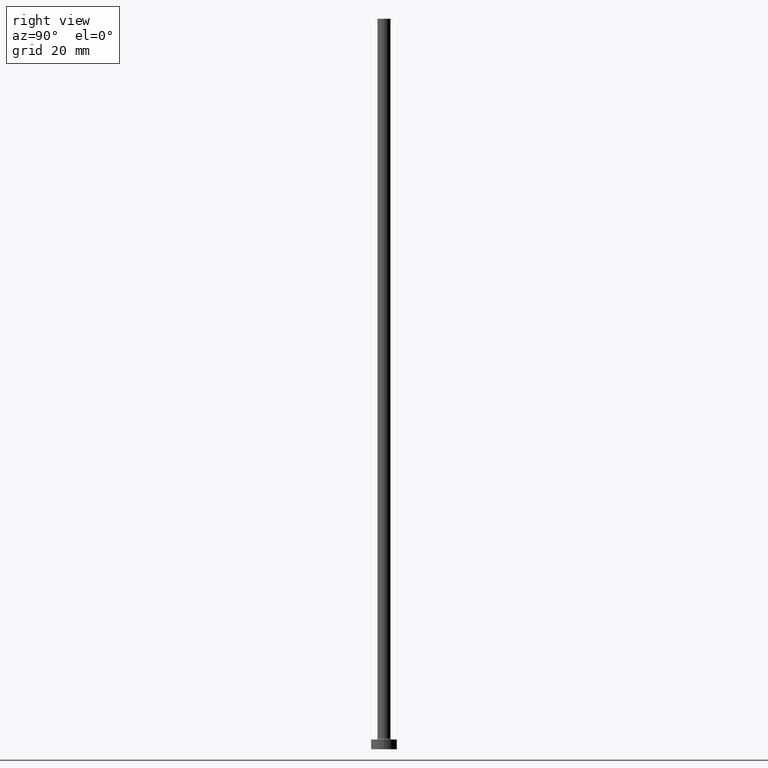
[diagram: clean part render]
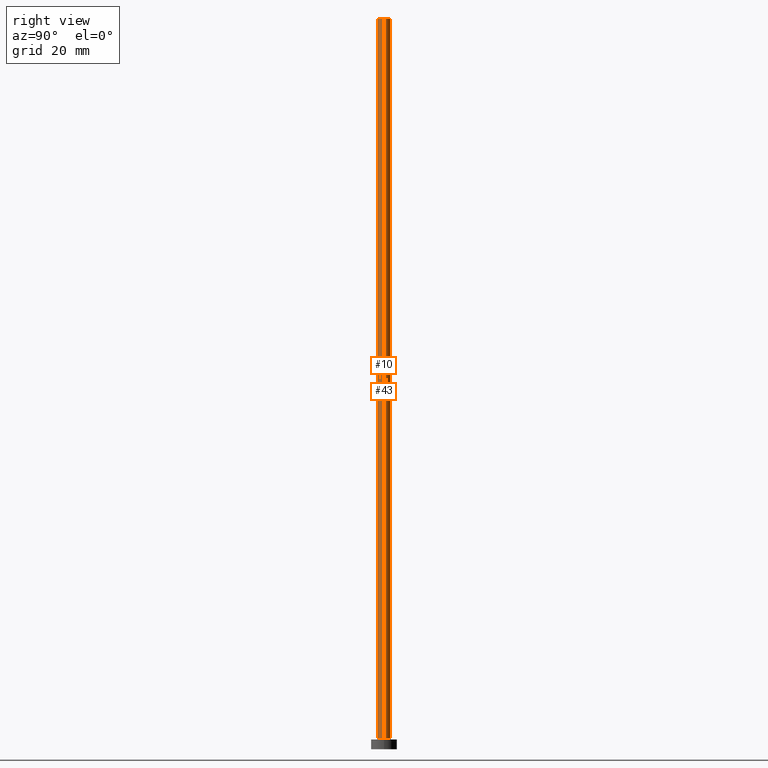
[diagram: same view with one multi-face feature highlighted, each face labeled with its STEP entity id]
A machine part, right view. The highlighted faces form ONE feature: a constant-radius fillet chain: 2 tangent blend faces with common blend radius 2 mm. The faces share edges in the B-rep.
Their STEP definitions:
[1] entity #43 (Cylinder):
#2 = VECTOR ( 'NONE', #95, 1000.000000000000000 ) ;
#19 = FACE_OUTER_BOUND ( 'NONE', #185, .T. ) ;
#29 = ORIENTED_EDGE ( 'NONE', *, *, #354, .F. ) ;
#30 = DIRECTION ( 'NONE',  ( -0.000000000000000000, -0.000000000000000000, -1.000000000000000000 ) ) ;
#34 = LINE ( 'NONE', #276, #434 ) ;
#36 = DIRECTION ( 'NONE',  ( -0.000000000000000000, -0.000000000000000000, -1.000000000000000000 ) ) ;
#43 = ADVANCED_FACE ( 'NONE', ( #19 ), #350, .T. ) ;
#47 = AXIS2_PLACEMENT_3D ( 'NONE', #301, #30, #96 ) ;
#51 = ORIENTED_EDGE ( 'NONE', *, *, #142, .T. ) ;
#59 = CARTESIAN_POINT ( 'NONE',  ( 2.000000000000000000, 2.449293598294706414E-16, 225.0000000000000000 ) ) ;
#73 = CARTESIAN_POINT ( 'NONE',  ( -2.000000000000000000, 0.000000000000000000, 3.299999999999997158 ) ) ;
#74 = DIRECTION ( 'NONE',  ( 1.000000000000000000, 0.000000000000000000, 0.000000000000000000 ) ) ;
#75 = EDGE_CURVE ( 'NONE', #331, #311, #85, .T. ) ;
#77 = DIRECTION ( 'NONE',  ( 1.000000000000000000, 0.000000000000000000, 0.000000000000000000 ) ) ;
#85 = CIRCLE ( 'NONE', #374, 2.000000000000000000 ) ;
#95 = DIRECTION ( 'NONE',  ( -0.000000000000000000, -0.000000000000000000, -1.000000000000000000 ) ) ;
#96 = DIRECTION ( 'NONE',  ( -1.000000000000000000, 0.000000000000000000, 0.000000000000000000 ) ) ;
#108 = DIRECTION ( 'NONE',  ( 0.000000000000000000, 0.000000000000000000, 1.000000000000000000 ) ) ;
#118 = CIRCLE ( 'NONE', #286, 2.000000000000000000 ) ;
#120 = CARTESIAN_POINT ( 'NONE',  ( -2.000000000000000000, 0.000000000000000000, 225.0000000000000000 ) ) ;
#142 = EDGE_CURVE ( 'NONE', #331, #182, #456, .T. ) ;
#162 = VERTEX_POINT ( 'NONE', #73 ) ;
#182 = VERTEX_POINT ( 'NONE', #409 ) ;
#185 = EDGE_LOOP ( 'NONE', ( #448, #51, #246, #29 ) ) ;
#242 = EDGE_CURVE ( 'NONE', #182, #162, #118, .T. ) ;
#246 = ORIENTED_EDGE ( 'NONE', *, *, #242, .T. ) ;
#276 = CARTESIAN_POINT ( 'NONE',  ( -2.000000000000000000, 0.000000000000000000, 225.0000000000000000 ) ) ;
#286 = AXIS2_PLACEMENT_3D ( 'NONE', #359, #395, #77 ) ;
#301 = CARTESIAN_POINT ( 'NONE',  ( 0.000000000000000000, 0.000000000000000000, 225.0000000000000000 ) ) ;
#311 = VERTEX_POINT ( 'NONE', #120 ) ;
#331 = VERTEX_POINT ( 'NONE', #416 ) ;
#350 = CYLINDRICAL_SURFACE ( 'NONE', #47, 2.000000000000000000 ) ;
#354 = EDGE_CURVE ( 'NONE', #311, #162, #34, .T. ) ;
#359 = CARTESIAN_POINT ( 'NONE',  ( 0.000000000000000000, 0.000000000000000000, 3.299999999999997158 ) ) ;
#374 = AXIS2_PLACEMENT_3D ( 'NONE', #458, #108, #74 ) ;
#395 = DIRECTION ( 'NONE',  ( 0.000000000000000000, 0.000000000000000000, 1.000000000000000000 ) ) ;
#409 = CARTESIAN_POINT ( 'NONE',  ( 2.000000000000000000, 2.449293598294706414E-16, 3.299999999999997158 ) ) ;
#416 = CARTESIAN_POINT ( 'NONE',  ( 2.000000000000000000, 2.449293598294706414E-16, 225.0000000000000000 ) ) ;
#434 = VECTOR ( 'NONE', #36, 1000.000000000000000 ) ;
#448 = ORIENTED_EDGE ( 'NONE', *, *, #75, .F. ) ;
#456 = LINE ( 'NONE', #59, #2 ) ;
#458 = CARTESIAN_POINT ( 'NONE',  ( 0.000000000000000000, 0.000000000000000000, 225.0000000000000000 ) ) ;
[2] entity #10 (Cylinder):
#2 = VECTOR ( 'NONE', #95, 1000.000000000000000 ) ;
#10 = ADVANCED_FACE ( 'NONE', ( #102 ), #255, .T. ) ;
#15 = ORIENTED_EDGE ( 'NONE', *, *, #354, .T. ) ;
#34 = LINE ( 'NONE', #276, #434 ) ;
#36 = DIRECTION ( 'NONE',  ( -0.000000000000000000, -0.000000000000000000, -1.000000000000000000 ) ) ;
#45 = AXIS2_PLACEMENT_3D ( 'NONE', #131, #343, #457 ) ;
#53 = EDGE_LOOP ( 'NONE', ( #157, #155, #15, #372 ) ) ;
#59 = CARTESIAN_POINT ( 'NONE',  ( 2.000000000000000000, 2.449293598294706414E-16, 225.0000000000000000 ) ) ;
#73 = CARTESIAN_POINT ( 'NONE',  ( -2.000000000000000000, 0.000000000000000000, 3.299999999999997158 ) ) ;
#89 = CARTESIAN_POINT ( 'NONE',  ( 0.000000000000000000, 0.000000000000000000, 225.0000000000000000 ) ) ;
#90 = CIRCLE ( 'NONE', #45, 2.000000000000000000 ) ;
#95 = DIRECTION ( 'NONE',  ( -0.000000000000000000, -0.000000000000000000, -1.000000000000000000 ) ) ;
#102 = FACE_OUTER_BOUND ( 'NONE', #53, .T. ) ;
#106 = DIRECTION ( 'NONE',  ( 0.000000000000000000, 0.000000000000000000, 1.000000000000000000 ) ) ;
#107 = CARTESIAN_POINT ( 'NONE',  ( 0.000000000000000000, 0.000000000000000000, 3.299999999999997158 ) ) ;
#120 = CARTESIAN_POINT ( 'NONE',  ( -2.000000000000000000, 0.000000000000000000, 225.0000000000000000 ) ) ;
#131 = CARTESIAN_POINT ( 'NONE',  ( 0.000000000000000000, 0.000000000000000000, 225.0000000000000000 ) ) ;
#142 = EDGE_CURVE ( 'NONE', #331, #182, #456, .T. ) ;
#155 = ORIENTED_EDGE ( 'NONE', *, *, #330, .F. ) ;
#157 = ORIENTED_EDGE ( 'NONE', *, *, #142, .F. ) ;
#162 = VERTEX_POINT ( 'NONE', #73 ) ;
#182 = VERTEX_POINT ( 'NONE', #409 ) ;
#187 = DIRECTION ( 'NONE',  ( -1.000000000000000000, 0.000000000000000000, 0.000000000000000000 ) ) ;
#209 = AXIS2_PLACEMENT_3D ( 'NONE', #89, #441, #187 ) ;
#255 = CYLINDRICAL_SURFACE ( 'NONE', #209, 2.000000000000000000 ) ;
#276 = CARTESIAN_POINT ( 'NONE',  ( -2.000000000000000000, 0.000000000000000000, 225.0000000000000000 ) ) ;
#311 = VERTEX_POINT ( 'NONE', #120 ) ;
#330 = EDGE_CURVE ( 'NONE', #311, #331, #90, .T. ) ;
#331 = VERTEX_POINT ( 'NONE', #416 ) ;
#343 = DIRECTION ( 'NONE',  ( 0.000000000000000000, 0.000000000000000000, 1.000000000000000000 ) ) ;
#354 = EDGE_CURVE ( 'NONE', #311, #162, #34, .T. ) ;
#361 = CIRCLE ( 'NONE', #427, 2.000000000000000000 ) ;
#372 = ORIENTED_EDGE ( 'NONE', *, *, #377, .T. ) ;
#377 = EDGE_CURVE ( 'NONE', #162, #182, #361, .T. ) ;
#387 = DIRECTION ( 'NONE',  ( 1.000000000000000000, 0.000000000000000000, 0.000000000000000000 ) ) ;
#409 = CARTESIAN_POINT ( 'NONE',  ( 2.000000000000000000, 2.449293598294706414E-16, 3.299999999999997158 ) ) ;
#416 = CARTESIAN_POINT ( 'NONE',  ( 2.000000000000000000, 2.449293598294706414E-16, 225.0000000000000000 ) ) ;
#427 = AXIS2_PLACEMENT_3D ( 'NONE', #107, #106, #387 ) ;
#434 = VECTOR ( 'NONE', #36, 1000.000000000000000 ) ;
#441 = DIRECTION ( 'NONE',  ( -0.000000000000000000, -0.000000000000000000, -1.000000000000000000 ) ) ;
#456 = LINE ( 'NONE', #59, #2 ) ;
#457 = DIRECTION ( 'NONE',  ( 1.000000000000000000, 0.000000000000000000, 0.000000000000000000 ) ) ;